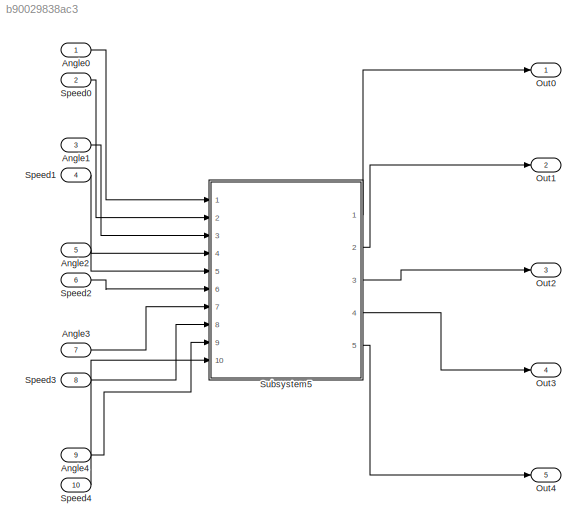
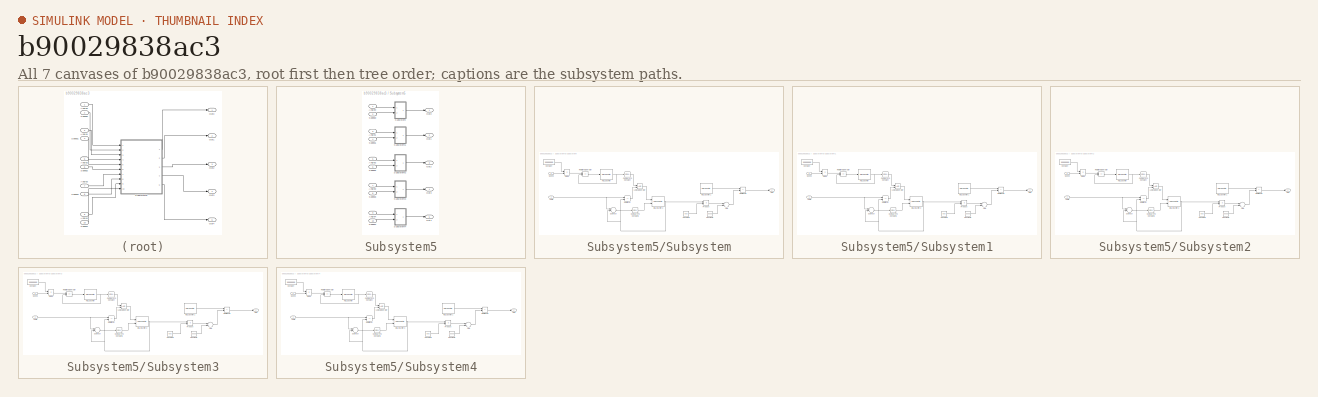
[diagram: thumbnail index - all 7 canvases of the model, root first then tree order]
MODEL slx_b90029838ac3
KIND model
BLOCK [Inport] Angle0
  IconDisplay = Port number
  OutDataTypeStr = int8
  SampleTime = 1
BLOCK [Inport] Angle1
  IconDisplay = Port number
  OutDataTypeStr = int8
  Port = 3
  SampleTime = 1
BLOCK [Inport] Angle2
  IconDisplay = Port number
  OutDataTypeStr = int8
  Port = 5
  SampleTime = 1
BLOCK [Inport] Angle3
  IconDisplay = Port number
  OutDataTypeStr = int8
  Port = 7
  SampleTime = 1
BLOCK [Inport] Angle4
  IconDisplay = Port number
  OutDataTypeStr = int8
  Port = 9
  SampleTime = 1
BLOCK [Outport] Out0
  IconDisplay = Port number
BLOCK [Outport] Out1
  IconDisplay = Port number
  Port = 2
BLOCK [Outport] Out2
  IconDisplay = Port number
  Port = 3
BLOCK [Outport] Out3
  IconDisplay = Port number
  Port = 4
BLOCK [Outport] Out4
  IconDisplay = Port number
  Port = 5
BLOCK [Inport] Speed0
  IconDisplay = Port number
  OutDataTypeStr = int32
  Port = 2
  SampleTime = 1
BLOCK [Inport] Speed1
  IconDisplay = Port number
  OutDataTypeStr = int32
  Port = 4
  SampleTime = 1
BLOCK [Inport] Speed2
  IconDisplay = Port number
  OutDataTypeStr = int32
  Port = 6
  SampleTime = 1
BLOCK [Inport] Speed3
  IconDisplay = Port number
  OutDataTypeStr = int32
  Port = 8
  SampleTime = 1
BLOCK [Inport] Speed4
  IconDisplay = Port number
  OutDataTypeStr = int32
  Port = 10
  SampleTime = 1
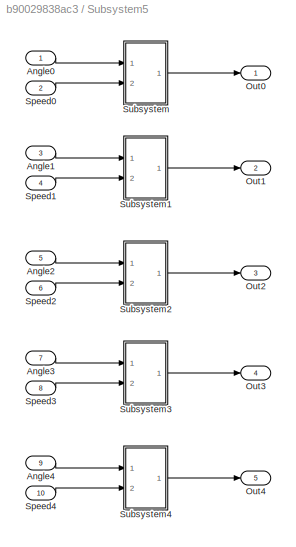
BLOCK [SubSystem] Subsystem5
  Ports = [10, 5]
  RequestExecContextInheritance = off
  TreatAsAtomicUnit = on
BLOCK [Inport] Subsystem5/Angle0
  IconDisplay = Port number
BLOCK [Inport] Subsystem5/Angle1
  IconDisplay = Port number
  Port = 3
BLOCK [Inport] Subsystem5/Angle2
  IconDisplay = Port number
  Port = 5
BLOCK [Inport] Subsystem5/Angle3
  IconDisplay = Port number
  Port = 7
BLOCK [Inport] Subsystem5/Angle4
  IconDisplay = Port number
  Port = 9
BLOCK [Outport] Subsystem5/Out0
  IconDisplay = Port number
BLOCK [Outport] Subsystem5/Out1
  IconDisplay = Port number
  Port = 2
BLOCK [Outport] Subsystem5/Out2
  IconDisplay = Port number
  Port = 3
BLOCK [Outport] Subsystem5/Out3
  IconDisplay = Port number
  Port = 4
BLOCK [Outport] Subsystem5/Out4
  IconDisplay = Port number
  Port = 5
BLOCK [Inport] Subsystem5/Speed0
  IconDisplay = Port number
  Port = 2
BLOCK [Inport] Subsystem5/Speed1
  IconDisplay = Port number
  Port = 4
BLOCK [Inport] Subsystem5/Speed2
  IconDisplay = Port number
  Port = 6
BLOCK [Inport] Subsystem5/Speed3
  IconDisplay = Port number
  Port = 8
BLOCK [Inport] Subsystem5/Speed4
  IconDisplay = Port number
  Port = 10
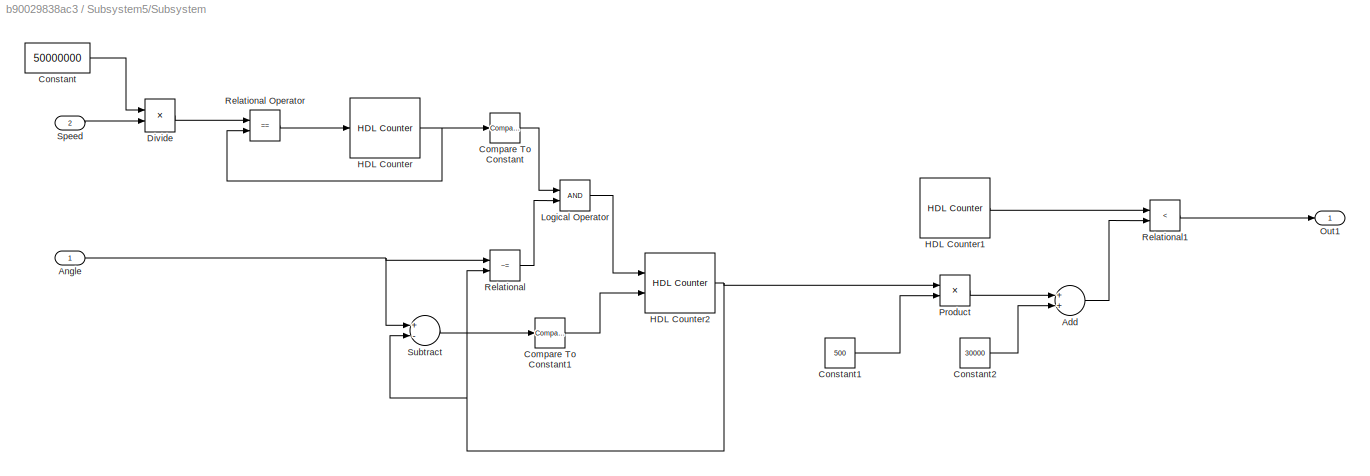
BLOCK [SubSystem] Subsystem5/Subsystem
  Ports = [2, 1]
  RequestExecContextInheritance = off
BLOCK [Sum] Subsystem5/Subsystem/Add
  InputSameDT = off
  OutDataTypeStr = Inherit: Inherit via internal rule
  Ports = [2, 1]
  SaturateOnIntegerOverflow = off
BLOCK [Inport] Subsystem5/Subsystem/Angle
  IconDisplay = Port number
BLOCK [Reference] Subsystem5/Subsystem/Compare To Constant  REF=simulink/Logic and Bit
Operations/Compare
To Constant
  OutDataTypeStr = boolean
  Ports = [1, 1]
  SourceBlock = simulink/Logic and Bit\nOperations/Compare\nTo Constant
  SourceType = Compare To Constant
  ZeroCross = on
  const = 0
  relop = ==
BLOCK [Reference] Subsystem5/Subsystem/Compare To Constant1  REF=simulink/Logic and Bit
Operations/Compare
To Constant
  OutDataTypeStr = boolean
  Ports = [1, 1]
  SourceBlock = simulink/Logic and Bit\nOperations/Compare\nTo Constant
  SourceType = Compare To Constant
  ZeroCross = on
  const = 0
  relop = >=
BLOCK [Constant] Subsystem5/Subsystem/Constant
  OutDataTypeStr = int32
  Value = 50000000
BLOCK [Constant] Subsystem5/Subsystem/Constant1
  OutDataTypeStr = int32
  Value = 500
BLOCK [Constant] Subsystem5/Subsystem/Constant2
  OutDataTypeStr = int32
  Value = 30000
BLOCK [Product] Subsystem5/Subsystem/Divide
  InputSameDT = off
  Inputs = */
  OutDataTypeStr = int32
  Ports = [2, 1]
BLOCK [Reference] Subsystem5/Subsystem/HDL Counter  REF=hdlsllib/HDL Operations/HDL Counter
  CountDataType = Unsigned
  CountDirPort = off
  CountEnbPort = off
  CountFracLen = 0
  CountFrom = 0
  CountFromType = Initial value
  CountInit = 0
  CountLoadPort = off
  CountMax = 100
  CountResetPort = on
  CountSampTime = 1
  CountStep = 1
  CountType = Free running
  CountWordLen = 32
  Ports = [1, 1]
  SourceBlock = hdlsllib/HDL Operations/HDL Counter
  SourceType = HDL Counter
BLOCK [Reference] Subsystem5/Subsystem/HDL Counter1  REF=hdlsllib/HDL Operations/HDL Counter
  CountDataType = Unsigned
  CountDirPort = off
  CountEnbPort = off
  CountFracLen = 0
  CountFrom = 0
  CountFromType = Initial value
  CountInit = 0
  CountLoadPort = off
  CountMax = 1000000
  CountResetPort = off
  CountSampTime = 1
  CountStep = 1
  CountType = Count limited
  CountWordLen = 32
  Ports = [0, 1]
  SourceBlock = hdlsllib/HDL Operations/HDL Counter
  SourceType = HDL Counter
BLOCK [Reference] Subsystem5/Subsystem/HDL Counter2  REF=hdlsllib/HDL Operations/HDL Counter
  CountDataType = Unsigned
  CountDirPort = on
  CountEnbPort = on
  CountFracLen = 0
  CountFrom = 0
  CountFromType = Specify
  CountInit = 90
  CountLoadPort = off
  CountMax = 180
  CountResetPort = off
  CountSampTime = 1
  CountStep = 1
  CountType = Count limited
  CountWordLen = 32
  Ports = [2, 1]
  SourceBlock = hdlsllib/HDL Operations/HDL Counter
  SourceType = HDL Counter
BLOCK [Logic] Subsystem5/Subsystem/Logical Operator
  AllPortsSameDT = off
  OutDataTypeStr = boolean
  Ports = [2, 1]
BLOCK [Outport] Subsystem5/Subsystem/Out1
  IconDisplay = Port number
BLOCK [Product] Subsystem5/Subsystem/Product
  InputSameDT = off
  OutDataTypeStr = Inherit: Inherit via internal rule
  Ports = [2, 1]
  RndMeth = Floor
  SaturateOnIntegerOverflow = off
BLOCK [RelationalOperator] Subsystem5/Subsystem/Relational
  InputSameDT = off
  Operator = ~=
  OutDataTypeStr = boolean
  Ports = [2, 1]
BLOCK [RelationalOperator] Subsystem5/Subsystem/Relational Operator
  InputSameDT = off
  Operator = ==
  OutDataTypeStr = boolean
  Ports = [2, 1]
BLOCK [RelationalOperator] Subsystem5/Subsystem/Relational1
  InputSameDT = off
  Operator = <
  OutDataTypeStr = boolean
  Ports = [2, 1]
BLOCK [Inport] Subsystem5/Subsystem/Speed
  IconDisplay = Port number
  Port = 2
BLOCK [Sum] Subsystem5/Subsystem/Subtract
  InputSameDT = off
  Inputs = +-
  OutDataTypeStr = Inherit: Inherit via internal rule
  Ports = [2, 1]
  SaturateOnIntegerOverflow = off
BLOCK [SubSystem] Subsystem5/Subsystem1
  Ports = [2, 1]
  RequestExecContextInheritance = off
BLOCK [Sum] Subsystem5/Subsystem1/Add
  InputSameDT = off
  OutDataTypeStr = Inherit: Inherit via internal rule
  Ports = [2, 1]
  SaturateOnIntegerOverflow = off
BLOCK [Inport] Subsystem5/Subsystem1/Angle
  IconDisplay = Port number
BLOCK [Reference] Subsystem5/Subsystem1/Compare To Constant  REF=simulink/Logic and Bit
Operations/Compare
To Constant
  OutDataTypeStr = boolean
  Ports = [1, 1]
  SourceBlock = simulink/Logic and Bit\nOperations/Compare\nTo Constant
  SourceType = Compare To Constant
  ZeroCross = on
  const = 0
  relop = ==
BLOCK [Reference] Subsystem5/Subsystem1/Compare To Constant1  REF=simulink/Logic and Bit
Operations/Compare
To Constant
  OutDataTypeStr = boolean
  Ports = [1, 1]
  SourceBlock = simulink/Logic and Bit\nOperations/Compare\nTo Constant
  SourceType = Compare To Constant
  ZeroCross = on
  const = 0
  relop = >=
BLOCK [Constant] Subsystem5/Subsystem1/Constant
  OutDataTypeStr = int32
  Value = 50000000
BLOCK [Constant] Subsystem5/Subsystem1/Constant1
  OutDataTypeStr = int32
  Value = 500
BLOCK [Constant] Subsystem5/Subsystem1/Constant2
  OutDataTypeStr = int32
  Value = 30000
BLOCK [Product] Subsystem5/Subsystem1/Divide
  InputSameDT = off
  Inputs = */
  OutDataTypeStr = int32
  Ports = [2, 1]
BLOCK [Reference] Subsystem5/Subsystem1/HDL Counter  REF=hdlsllib/HDL Operations/HDL Counter
  CountDataType = Unsigned
  CountDirPort = off
  CountEnbPort = off
  CountFracLen = 0
  CountFrom = 0
  CountFromType = Initial value
  CountInit = 0
  CountLoadPort = off
  CountMax = 100
  CountResetPort = on
  CountSampTime = 1
  CountStep = 1
  CountType = Free running
  CountWordLen = 32
  Ports = [1, 1]
  SourceBlock = hdlsllib/HDL Operations/HDL Counter
  SourceType = HDL Counter
BLOCK [Reference] Subsystem5/Subsystem1/HDL Counter1  REF=hdlsllib/HDL Operations/HDL Counter
  CountDataType = Unsigned
  CountDirPort = off
  CountEnbPort = off
  CountFracLen = 0
  CountFrom = 0
  CountFromType = Initial value
  CountInit = 0
  CountLoadPort = off
  CountMax = 1000000
  CountResetPort = off
  CountSampTime = 1
  CountStep = 1
  CountType = Count limited
  CountWordLen = 32
  Ports = [0, 1]
  SourceBlock = hdlsllib/HDL Operations/HDL Counter
  SourceType = HDL Counter
BLOCK [Reference] Subsystem5/Subsystem1/HDL Counter2  REF=hdlsllib/HDL Operations/HDL Counter
  CountDataType = Unsigned
  CountDirPort = on
  CountEnbPort = on
  CountFracLen = 0
  CountFrom = 0
  CountFromType = Specify
  CountInit = 90
  CountLoadPort = off
  CountMax = 180
  CountResetPort = off
  CountSampTime = 1
  CountStep = 1
  CountType = Count limited
  CountWordLen = 32
  Ports = [2, 1]
  SourceBlock = hdlsllib/HDL Operations/HDL Counter
  SourceType = HDL Counter
BLOCK [Logic] Subsystem5/Subsystem1/Logical Operator
  AllPortsSameDT = off
  OutDataTypeStr = boolean
  Ports = [2, 1]
BLOCK [Outport] Subsystem5/Subsystem1/Out1
  IconDisplay = Port number
BLOCK [Product] Subsystem5/Subsystem1/Product
  InputSameDT = off
  OutDataTypeStr = Inherit: Inherit via internal rule
  Ports = [2, 1]
  RndMeth = Floor
  SaturateOnIntegerOverflow = off
BLOCK [RelationalOperator] Subsystem5/Subsystem1/Relational
  InputSameDT = off
  Operator = ~=
  OutDataTypeStr = boolean
  Ports = [2, 1]
BLOCK [RelationalOperator] Subsystem5/Subsystem1/Relational Operator
  InputSameDT = off
  Operator = ==
  OutDataTypeStr = boolean
  Ports = [2, 1]
BLOCK [RelationalOperator] Subsystem5/Subsystem1/Relational1
  InputSameDT = off
  Operator = <
  OutDataTypeStr = boolean
  Ports = [2, 1]
BLOCK [Inport] Subsystem5/Subsystem1/Speed
  IconDisplay = Port number
  Port = 2
BLOCK [Sum] Subsystem5/Subsystem1/Subtract
  InputSameDT = off
  Inputs = +-
  OutDataTypeStr = Inherit: Inherit via internal rule
  Ports = [2, 1]
  SaturateOnIntegerOverflow = off
BLOCK [SubSystem] Subsystem5/Subsystem2
  Ports = [2, 1]
  RequestExecContextInheritance = off
BLOCK [Sum] Subsystem5/Subsystem2/Add
  InputSameDT = off
  OutDataTypeStr = Inherit: Inherit via internal rule
  Ports = [2, 1]
  SaturateOnIntegerOverflow = off
BLOCK [Inport] Subsystem5/Subsystem2/Angle
  IconDisplay = Port number
BLOCK [Reference] Subsystem5/Subsystem2/Compare To Constant  REF=simulink/Logic and Bit
Operations/Compare
To Constant
  OutDataTypeStr = boolean
  Ports = [1, 1]
  SourceBlock = simulink/Logic and Bit\nOperations/Compare\nTo Constant
  SourceType = Compare To Constant
  ZeroCross = on
  const = 0
  relop = ==
BLOCK [Reference] Subsystem5/Subsystem2/Compare To Constant1  REF=simulink/Logic and Bit
Operations/Compare
To Constant
  OutDataTypeStr = boolean
  Ports = [1, 1]
  SourceBlock = simulink/Logic and Bit\nOperations/Compare\nTo Constant
  SourceType = Compare To Constant
  ZeroCross = on
  const = 0
  relop = >=
BLOCK [Constant] Subsystem5/Subsystem2/Constant
  OutDataTypeStr = int32
  Value = 50000000
BLOCK [Constant] Subsystem5/Subsystem2/Constant1
  OutDataTypeStr = int32
  Value = 500
BLOCK [Constant] Subsystem5/Subsystem2/Constant2
  OutDataTypeStr = int32
  Value = 30000
BLOCK [Product] Subsystem5/Subsystem2/Divide
  InputSameDT = off
  Inputs = */
  OutDataTypeStr = int32
  Ports = [2, 1]
BLOCK [Reference] Subsystem5/Subsystem2/HDL Counter  REF=hdlsllib/HDL Operations/HDL Counter
  CountDataType = Unsigned
  CountDirPort = off
  CountEnbPort = off
  CountFracLen = 0
  CountFrom = 0
  CountFromType = Initial value
  CountInit = 0
  CountLoadPort = off
  CountMax = 100
  CountResetPort = on
  CountSampTime = 1
  CountStep = 1
  CountType = Free running
  CountWordLen = 32
  Ports = [1, 1]
  SourceBlock = hdlsllib/HDL Operations/HDL Counter
  SourceType = HDL Counter
BLOCK [Reference] Subsystem5/Subsystem2/HDL Counter1  REF=hdlsllib/HDL Operations/HDL Counter
  CountDataType = Unsigned
  CountDirPort = off
  CountEnbPort = off
  CountFracLen = 0
  CountFrom = 0
  CountFromType = Initial value
  CountInit = 0
  CountLoadPort = off
  CountMax = 1000000
  CountResetPort = off
  CountSampTime = 1
  CountStep = 1
  CountType = Count limited
  CountWordLen = 32
  Ports = [0, 1]
  SourceBlock = hdlsllib/HDL Operations/HDL Counter
  SourceType = HDL Counter
BLOCK [Reference] Subsystem5/Subsystem2/HDL Counter2  REF=hdlsllib/HDL Operations/HDL Counter
  CountDataType = Unsigned
  CountDirPort = on
  CountEnbPort = on
  CountFracLen = 0
  CountFrom = 0
  CountFromType = Specify
  CountInit = 90
  CountLoadPort = off
  CountMax = 180
  CountResetPort = off
  CountSampTime = 1
  CountStep = 1
  CountType = Count limited
  CountWordLen = 32
  Ports = [2, 1]
  SourceBlock = hdlsllib/HDL Operations/HDL Counter
  SourceType = HDL Counter
BLOCK [Logic] Subsystem5/Subsystem2/Logical Operator
  AllPortsSameDT = off
  OutDataTypeStr = boolean
  Ports = [2, 1]
BLOCK [Outport] Subsystem5/Subsystem2/Out1
  IconDisplay = Port number
BLOCK [Product] Subsystem5/Subsystem2/Product
  InputSameDT = off
  OutDataTypeStr = Inherit: Inherit via internal rule
  Ports = [2, 1]
  RndMeth = Floor
  SaturateOnIntegerOverflow = off
BLOCK [RelationalOperator] Subsystem5/Subsystem2/Relational
  InputSameDT = off
  Operator = ~=
  OutDataTypeStr = boolean
  Ports = [2, 1]
BLOCK [RelationalOperator] Subsystem5/Subsystem2/Relational Operator
  InputSameDT = off
  Operator = ==
  OutDataTypeStr = boolean
  Ports = [2, 1]
BLOCK [RelationalOperator] Subsystem5/Subsystem2/Relational1
  InputSameDT = off
  Operator = <
  OutDataTypeStr = boolean
  Ports = [2, 1]
BLOCK [Inport] Subsystem5/Subsystem2/Speed
  IconDisplay = Port number
  Port = 2
BLOCK [Sum] Subsystem5/Subsystem2/Subtract
  InputSameDT = off
  Inputs = +-
  OutDataTypeStr = Inherit: Inherit via internal rule
  Ports = [2, 1]
  SaturateOnIntegerOverflow = off
BLOCK [SubSystem] Subsystem5/Subsystem3
  Ports = [2, 1]
  RequestExecContextInheritance = off
BLOCK [Sum] Subsystem5/Subsystem3/Add
  InputSameDT = off
  OutDataTypeStr = Inherit: Inherit via internal rule
  Ports = [2, 1]
  SaturateOnIntegerOverflow = off
BLOCK [Inport] Subsystem5/Subsystem3/Angle
  IconDisplay = Port number
BLOCK [Reference] Subsystem5/Subsystem3/Compare To Constant  REF=simulink/Logic and Bit
Operations/Compare
To Constant
  OutDataTypeStr = boolean
  Ports = [1, 1]
  SourceBlock = simulink/Logic and Bit\nOperations/Compare\nTo Constant
  SourceType = Compare To Constant
  ZeroCross = on
  const = 0
  relop = ==
BLOCK [Reference] Subsystem5/Subsystem3/Compare To Constant1  REF=simulink/Logic and Bit
Operations/Compare
To Constant
  OutDataTypeStr = boolean
  Ports = [1, 1]
  SourceBlock = simulink/Logic and Bit\nOperations/Compare\nTo Constant
  SourceType = Compare To Constant
  ZeroCross = on
  const = 0
  relop = >=
BLOCK [Constant] Subsystem5/Subsystem3/Constant
  OutDataTypeStr = int32
  Value = 50000000
BLOCK [Constant] Subsystem5/Subsystem3/Constant1
  OutDataTypeStr = int32
  Value = 500
BLOCK [Constant] Subsystem5/Subsystem3/Constant2
  OutDataTypeStr = int32
  Value = 30000
BLOCK [Product] Subsystem5/Subsystem3/Divide
  InputSameDT = off
  Inputs = */
  OutDataTypeStr = int32
  Ports = [2, 1]
BLOCK [Reference] Subsystem5/Subsystem3/HDL Counter  REF=hdlsllib/HDL Operations/HDL Counter
  CountDataType = Unsigned
  CountDirPort = off
  CountEnbPort = off
  CountFracLen = 0
  CountFrom = 0
  CountFromType = Initial value
  CountInit = 0
  CountLoadPort = off
  CountMax = 100
  CountResetPort = on
  CountSampTime = 1
  CountStep = 1
  CountType = Free running
  CountWordLen = 32
  Ports = [1, 1]
  SourceBlock = hdlsllib/HDL Operations/HDL Counter
  SourceType = HDL Counter
BLOCK [Reference] Subsystem5/Subsystem3/HDL Counter1  REF=hdlsllib/HDL Operations/HDL Counter
  CountDataType = Unsigned
  CountDirPort = off
  CountEnbPort = off
  CountFracLen = 0
  CountFrom = 0
  CountFromType = Initial value
  CountInit = 0
  CountLoadPort = off
  CountMax = 1000000
  CountResetPort = off
  CountSampTime = 1
  CountStep = 1
  CountType = Count limited
  CountWordLen = 32
  Ports = [0, 1]
  SourceBlock = hdlsllib/HDL Operations/HDL Counter
  SourceType = HDL Counter
BLOCK [Reference] Subsystem5/Subsystem3/HDL Counter2  REF=hdlsllib/HDL Operations/HDL Counter
  CountDataType = Unsigned
  CountDirPort = on
  CountEnbPort = on
  CountFracLen = 0
  CountFrom = 0
  CountFromType = Specify
  CountInit = 90
  CountLoadPort = off
  CountMax = 180
  CountResetPort = off
  CountSampTime = 1
  CountStep = 1
  CountType = Count limited
  CountWordLen = 32
  Ports = [2, 1]
  SourceBlock = hdlsllib/HDL Operations/HDL Counter
  SourceType = HDL Counter
BLOCK [Logic] Subsystem5/Subsystem3/Logical Operator
  AllPortsSameDT = off
  OutDataTypeStr = boolean
  Ports = [2, 1]
BLOCK [Outport] Subsystem5/Subsystem3/Out1
  IconDisplay = Port number
BLOCK [Product] Subsystem5/Subsystem3/Product
  InputSameDT = off
  OutDataTypeStr = Inherit: Inherit via internal rule
  Ports = [2, 1]
  RndMeth = Floor
  SaturateOnIntegerOverflow = off
BLOCK [RelationalOperator] Subsystem5/Subsystem3/Relational
  InputSameDT = off
  Operator = ~=
  OutDataTypeStr = boolean
  Ports = [2, 1]
BLOCK [RelationalOperator] Subsystem5/Subsystem3/Relational Operator
  InputSameDT = off
  Operator = ==
  OutDataTypeStr = boolean
  Ports = [2, 1]
BLOCK [RelationalOperator] Subsystem5/Subsystem3/Relational1
  InputSameDT = off
  Operator = <
  OutDataTypeStr = boolean
  Ports = [2, 1]
BLOCK [Inport] Subsystem5/Subsystem3/Speed
  IconDisplay = Port number
  Port = 2
BLOCK [Sum] Subsystem5/Subsystem3/Subtract
  InputSameDT = off
  Inputs = +-
  OutDataTypeStr = Inherit: Inherit via internal rule
  Ports = [2, 1]
  SaturateOnIntegerOverflow = off
BLOCK [SubSystem] Subsystem5/Subsystem4
  Ports = [2, 1]
  RequestExecContextInheritance = off
BLOCK [Sum] Subsystem5/Subsystem4/Add
  InputSameDT = off
  OutDataTypeStr = Inherit: Inherit via internal rule
  Ports = [2, 1]
  SaturateOnIntegerOverflow = off
BLOCK [Inport] Subsystem5/Subsystem4/Angle
  IconDisplay = Port number
BLOCK [Reference] Subsystem5/Subsystem4/Compare To Constant  REF=simulink/Logic and Bit
Operations/Compare
To Constant
  OutDataTypeStr = boolean
  Ports = [1, 1]
  SourceBlock = simulink/Logic and Bit\nOperations/Compare\nTo Constant
  SourceType = Compare To Constant
  ZeroCross = on
  const = 0
  relop = ==
BLOCK [Reference] Subsystem5/Subsystem4/Compare To Constant1  REF=simulink/Logic and Bit
Operations/Compare
To Constant
  OutDataTypeStr = boolean
  Ports = [1, 1]
  SourceBlock = simulink/Logic and Bit\nOperations/Compare\nTo Constant
  SourceType = Compare To Constant
  ZeroCross = on
  const = 0
  relop = >=
BLOCK [Constant] Subsystem5/Subsystem4/Constant
  OutDataTypeStr = int32
  Value = 50000000
BLOCK [Constant] Subsystem5/Subsystem4/Constant1
  OutDataTypeStr = int32
  Value = 500
BLOCK [Constant] Subsystem5/Subsystem4/Constant2
  OutDataTypeStr = int32
  Value = 30000
BLOCK [Product] Subsystem5/Subsystem4/Divide
  InputSameDT = off
  Inputs = */
  OutDataTypeStr = int32
  Ports = [2, 1]
BLOCK [Reference] Subsystem5/Subsystem4/HDL Counter  REF=hdlsllib/HDL Operations/HDL Counter
  CountDataType = Unsigned
  CountDirPort = off
  CountEnbPort = off
  CountFracLen = 0
  CountFrom = 0
  CountFromType = Initial value
  CountInit = 0
  CountLoadPort = off
  CountMax = 100
  CountResetPort = on
  CountSampTime = 1
  CountStep = 1
  CountType = Free running
  CountWordLen = 32
  Ports = [1, 1]
  SourceBlock = hdlsllib/HDL Operations/HDL Counter
  SourceType = HDL Counter
BLOCK [Reference] Subsystem5/Subsystem4/HDL Counter1  REF=hdlsllib/HDL Operations/HDL Counter
  CountDataType = Unsigned
  CountDirPort = off
  CountEnbPort = off
  CountFracLen = 0
  CountFrom = 0
  CountFromType = Initial value
  CountInit = 0
  CountLoadPort = off
  CountMax = 1000000
  CountResetPort = off
  CountSampTime = 1
  CountStep = 1
  CountType = Count limited
  CountWordLen = 32
  Ports = [0, 1]
  SourceBlock = hdlsllib/HDL Operations/HDL Counter
  SourceType = HDL Counter
BLOCK [Reference] Subsystem5/Subsystem4/HDL Counter2  REF=hdlsllib/HDL Operations/HDL Counter
  CountDataType = Unsigned
  CountDirPort = on
  CountEnbPort = on
  CountFracLen = 0
  CountFrom = 0
  CountFromType = Specify
  CountInit = 90
  CountLoadPort = off
  CountMax = 180
  CountResetPort = off
  CountSampTime = 1
  CountStep = 1
  CountType = Count limited
  CountWordLen = 32
  Ports = [2, 1]
  SourceBlock = hdlsllib/HDL Operations/HDL Counter
  SourceType = HDL Counter
BLOCK [Logic] Subsystem5/Subsystem4/Logical Operator
  AllPortsSameDT = off
  OutDataTypeStr = boolean
  Ports = [2, 1]
BLOCK [Outport] Subsystem5/Subsystem4/Out1
  IconDisplay = Port number
BLOCK [Product] Subsystem5/Subsystem4/Product
  InputSameDT = off
  OutDataTypeStr = Inherit: Inherit via internal rule
  Ports = [2, 1]
  RndMeth = Floor
  SaturateOnIntegerOverflow = off
BLOCK [RelationalOperator] Subsystem5/Subsystem4/Relational
  InputSameDT = off
  Operator = ~=
  OutDataTypeStr = boolean
  Ports = [2, 1]
BLOCK [RelationalOperator] Subsystem5/Subsystem4/Relational Operator
  InputSameDT = off
  Operator = ==
  OutDataTypeStr = boolean
  Ports = [2, 1]
BLOCK [RelationalOperator] Subsystem5/Subsystem4/Relational1
  InputSameDT = off
  Operator = <
  OutDataTypeStr = boolean
  Ports = [2, 1]
BLOCK [Inport] Subsystem5/Subsystem4/Speed
  IconDisplay = Port number
  Port = 2
BLOCK [Sum] Subsystem5/Subsystem4/Subtract
  InputSameDT = off
  Inputs = +-
  OutDataTypeStr = Inherit: Inherit via internal rule
  Ports = [2, 1]
  SaturateOnIntegerOverflow = off
LINE Angle0:1 -> Subsystem5:1
LINE Angle1:1 -> Subsystem5:3
LINE Angle2:1 -> Subsystem5:5
LINE Angle3:1 -> Subsystem5:7
LINE Angle4:1 -> Subsystem5:9
LINE Speed0:1 -> Subsystem5:2
LINE Speed1:1 -> Subsystem5:4
LINE Speed2:1 -> Subsystem5:6
LINE Speed3:1 -> Subsystem5:8
LINE Speed4:1 -> Subsystem5:10
LINE Subsystem5/Angle0:1 -> Subsystem5/Subsystem:1
LINE Subsystem5/Angle1:1 -> Subsystem5/Subsystem1:1
LINE Subsystem5/Angle2:1 -> Subsystem5/Subsystem2:1
LINE Subsystem5/Angle3:1 -> Subsystem5/Subsystem3:1
LINE Subsystem5/Angle4:1 -> Subsystem5/Subsystem4:1
LINE Subsystem5/Speed0:1 -> Subsystem5/Subsystem:2
LINE Subsystem5/Speed1:1 -> Subsystem5/Subsystem1:2
LINE Subsystem5/Speed2:1 -> Subsystem5/Subsystem2:2
LINE Subsystem5/Speed3:1 -> Subsystem5/Subsystem3:2
LINE Subsystem5/Speed4:1 -> Subsystem5/Subsystem4:2
LINE Subsystem5/Subsystem/Add:1 -> Subsystem5/Subsystem/Relational1:2
NET Subsystem5/Subsystem/Angle:1 -> Subsystem5/Subsystem/Relational:1, Subsystem5/Subsystem/Subtract:1
LINE Subsystem5/Subsystem/Compare To Constant1:1 -> Subsystem5/Subsystem/HDL Counter2:2
LINE Subsystem5/Subsystem/Compare To Constant:1 -> Subsystem5/Subsystem/Logical Operator:1
LINE Subsystem5/Subsystem/Constant1:1 -> Subsystem5/Subsystem/Product:2
LINE Subsystem5/Subsystem/Constant2:1 -> Subsystem5/Subsystem/Add:2
LINE Subsystem5/Subsystem/Constant:1 -> Subsystem5/Subsystem/Divide:1
LINE Subsystem5/Subsystem/Divide:1 -> Subsystem5/Subsystem/Relational Operator:1
LINE Subsystem5/Subsystem/HDL Counter1:1 -> Subsystem5/Subsystem/Relational1:1
NET Subsystem5/Subsystem/HDL Counter2:1 -> Subsystem5/Subsystem/Product:1, Subsystem5/Subsystem/Relational:2, Subsystem5/Subsystem/Subtract:2
NET Subsystem5/Subsystem/HDL Counter:1 -> Subsystem5/Subsystem/Compare To Constant:1, Subsystem5/Subsystem/Relational Operator:2
LINE Subsystem5/Subsystem/Logical Operator:1 -> Subsystem5/Subsystem/HDL Counter2:1
LINE Subsystem5/Subsystem/Product:1 -> Subsystem5/Subsystem/Add:1
LINE Subsystem5/Subsystem/Relational Operator:1 -> Subsystem5/Subsystem/HDL Counter:1
LINE Subsystem5/Subsystem/Relational1:1 -> Subsystem5/Subsystem/Out1:1
LINE Subsystem5/Subsystem/Relational:1 -> Subsystem5/Subsystem/Logical Operator:2
LINE Subsystem5/Subsystem/Speed:1 -> Subsystem5/Subsystem/Divide:2
LINE Subsystem5/Subsystem/Subtract:1 -> Subsystem5/Subsystem/Compare To Constant1:1
LINE Subsystem5/Subsystem1/Add:1 -> Subsystem5/Subsystem1/Relational1:2
NET Subsystem5/Subsystem1/Angle:1 -> Subsystem5/Subsystem1/Relational:1, Subsystem5/Subsystem1/Subtract:1
LINE Subsystem5/Subsystem1/Compare To Constant1:1 -> Subsystem5/Subsystem1/HDL Counter2:2
LINE Subsystem5/Subsystem1/Compare To Constant:1 -> Subsystem5/Subsystem1/Logical Operator:1
LINE Subsystem5/Subsystem1/Constant1:1 -> Subsystem5/Subsystem1/Product:2
LINE Subsystem5/Subsystem1/Constant2:1 -> Subsystem5/Subsystem1/Add:2
LINE Subsystem5/Subsystem1/Constant:1 -> Subsystem5/Subsystem1/Divide:1
LINE Subsystem5/Subsystem1/Divide:1 -> Subsystem5/Subsystem1/Relational Operator:1
LINE Subsystem5/Subsystem1/HDL Counter1:1 -> Subsystem5/Subsystem1/Relational1:1
NET Subsystem5/Subsystem1/HDL Counter2:1 -> Subsystem5/Subsystem1/Product:1, Subsystem5/Subsystem1/Relational:2, Subsystem5/Subsystem1/Subtract:2
NET Subsystem5/Subsystem1/HDL Counter:1 -> Subsystem5/Subsystem1/Compare To Constant:1, Subsystem5/Subsystem1/Relational Operator:2
LINE Subsystem5/Subsystem1/Logical Operator:1 -> Subsystem5/Subsystem1/HDL Counter2:1
LINE Subsystem5/Subsystem1/Product:1 -> Subsystem5/Subsystem1/Add:1
LINE Subsystem5/Subsystem1/Relational Operator:1 -> Subsystem5/Subsystem1/HDL Counter:1
LINE Subsystem5/Subsystem1/Relational1:1 -> Subsystem5/Subsystem1/Out1:1
LINE Subsystem5/Subsystem1/Relational:1 -> Subsystem5/Subsystem1/Logical Operator:2
LINE Subsystem5/Subsystem1/Speed:1 -> Subsystem5/Subsystem1/Divide:2
LINE Subsystem5/Subsystem1/Subtract:1 -> Subsystem5/Subsystem1/Compare To Constant1:1
LINE Subsystem5/Subsystem1:1 -> Subsystem5/Out1:1
LINE Subsystem5/Subsystem2/Add:1 -> Subsystem5/Subsystem2/Relational1:2
NET Subsystem5/Subsystem2/Angle:1 -> Subsystem5/Subsystem2/Relational:1, Subsystem5/Subsystem2/Subtract:1
LINE Subsystem5/Subsystem2/Compare To Constant1:1 -> Subsystem5/Subsystem2/HDL Counter2:2
LINE Subsystem5/Subsystem2/Compare To Constant:1 -> Subsystem5/Subsystem2/Logical Operator:1
LINE Subsystem5/Subsystem2/Constant1:1 -> Subsystem5/Subsystem2/Product:2
LINE Subsystem5/Subsystem2/Constant2:1 -> Subsystem5/Subsystem2/Add:2
LINE Subsystem5/Subsystem2/Constant:1 -> Subsystem5/Subsystem2/Divide:1
LINE Subsystem5/Subsystem2/Divide:1 -> Subsystem5/Subsystem2/Relational Operator:1
LINE Subsystem5/Subsystem2/HDL Counter1:1 -> Subsystem5/Subsystem2/Relational1:1
NET Subsystem5/Subsystem2/HDL Counter2:1 -> Subsystem5/Subsystem2/Product:1, Subsystem5/Subsystem2/Relational:2, Subsystem5/Subsystem2/Subtract:2
NET Subsystem5/Subsystem2/HDL Counter:1 -> Subsystem5/Subsystem2/Compare To Constant:1, Subsystem5/Subsystem2/Relational Operator:2
LINE Subsystem5/Subsystem2/Logical Operator:1 -> Subsystem5/Subsystem2/HDL Counter2:1
LINE Subsystem5/Subsystem2/Product:1 -> Subsystem5/Subsystem2/Add:1
LINE Subsystem5/Subsystem2/Relational Operator:1 -> Subsystem5/Subsystem2/HDL Counter:1
LINE Subsystem5/Subsystem2/Relational1:1 -> Subsystem5/Subsystem2/Out1:1
LINE Subsystem5/Subsystem2/Relational:1 -> Subsystem5/Subsystem2/Logical Operator:2
LINE Subsystem5/Subsystem2/Speed:1 -> Subsystem5/Subsystem2/Divide:2
LINE Subsystem5/Subsystem2/Subtract:1 -> Subsystem5/Subsystem2/Compare To Constant1:1
LINE Subsystem5/Subsystem2:1 -> Subsystem5/Out2:1
LINE Subsystem5/Subsystem3/Add:1 -> Subsystem5/Subsystem3/Relational1:2
NET Subsystem5/Subsystem3/Angle:1 -> Subsystem5/Subsystem3/Relational:1, Subsystem5/Subsystem3/Subtract:1
LINE Subsystem5/Subsystem3/Compare To Constant1:1 -> Subsystem5/Subsystem3/HDL Counter2:2
LINE Subsystem5/Subsystem3/Compare To Constant:1 -> Subsystem5/Subsystem3/Logical Operator:1
LINE Subsystem5/Subsystem3/Constant1:1 -> Subsystem5/Subsystem3/Product:2
LINE Subsystem5/Subsystem3/Constant2:1 -> Subsystem5/Subsystem3/Add:2
LINE Subsystem5/Subsystem3/Constant:1 -> Subsystem5/Subsystem3/Divide:1
LINE Subsystem5/Subsystem3/Divide:1 -> Subsystem5/Subsystem3/Relational Operator:1
LINE Subsystem5/Subsystem3/HDL Counter1:1 -> Subsystem5/Subsystem3/Relational1:1
NET Subsystem5/Subsystem3/HDL Counter2:1 -> Subsystem5/Subsystem3/Product:1, Subsystem5/Subsystem3/Relational:2, Subsystem5/Subsystem3/Subtract:2
NET Subsystem5/Subsystem3/HDL Counter:1 -> Subsystem5/Subsystem3/Compare To Constant:1, Subsystem5/Subsystem3/Relational Operator:2
LINE Subsystem5/Subsystem3/Logical Operator:1 -> Subsystem5/Subsystem3/HDL Counter2:1
LINE Subsystem5/Subsystem3/Product:1 -> Subsystem5/Subsystem3/Add:1
LINE Subsystem5/Subsystem3/Relational Operator:1 -> Subsystem5/Subsystem3/HDL Counter:1
LINE Subsystem5/Subsystem3/Relational1:1 -> Subsystem5/Subsystem3/Out1:1
LINE Subsystem5/Subsystem3/Relational:1 -> Subsystem5/Subsystem3/Logical Operator:2
LINE Subsystem5/Subsystem3/Speed:1 -> Subsystem5/Subsystem3/Divide:2
LINE Subsystem5/Subsystem3/Subtract:1 -> Subsystem5/Subsystem3/Compare To Constant1:1
LINE Subsystem5/Subsystem3:1 -> Subsystem5/Out3:1
LINE Subsystem5/Subsystem4/Add:1 -> Subsystem5/Subsystem4/Relational1:2
NET Subsystem5/Subsystem4/Angle:1 -> Subsystem5/Subsystem4/Relational:1, Subsystem5/Subsystem4/Subtract:1
LINE Subsystem5/Subsystem4/Compare To Constant1:1 -> Subsystem5/Subsystem4/HDL Counter2:2
LINE Subsystem5/Subsystem4/Compare To Constant:1 -> Subsystem5/Subsystem4/Logical Operator:1
LINE Subsystem5/Subsystem4/Constant1:1 -> Subsystem5/Subsystem4/Product:2
LINE Subsystem5/Subsystem4/Constant2:1 -> Subsystem5/Subsystem4/Add:2
LINE Subsystem5/Subsystem4/Constant:1 -> Subsystem5/Subsystem4/Divide:1
LINE Subsystem5/Subsystem4/Divide:1 -> Subsystem5/Subsystem4/Relational Operator:1
LINE Subsystem5/Subsystem4/HDL Counter1:1 -> Subsystem5/Subsystem4/Relational1:1
NET Subsystem5/Subsystem4/HDL Counter2:1 -> Subsystem5/Subsystem4/Product:1, Subsystem5/Subsystem4/Relational:2, Subsystem5/Subsystem4/Subtract:2
NET Subsystem5/Subsystem4/HDL Counter:1 -> Subsystem5/Subsystem4/Compare To Constant:1, Subsystem5/Subsystem4/Relational Operator:2
LINE Subsystem5/Subsystem4/Logical Operator:1 -> Subsystem5/Subsystem4/HDL Counter2:1
LINE Subsystem5/Subsystem4/Product:1 -> Subsystem5/Subsystem4/Add:1
LINE Subsystem5/Subsystem4/Relational Operator:1 -> Subsystem5/Subsystem4/HDL Counter:1
LINE Subsystem5/Subsystem4/Relational1:1 -> Subsystem5/Subsystem4/Out1:1
LINE Subsystem5/Subsystem4/Relational:1 -> Subsystem5/Subsystem4/Logical Operator:2
LINE Subsystem5/Subsystem4/Speed:1 -> Subsystem5/Subsystem4/Divide:2
LINE Subsystem5/Subsystem4/Subtract:1 -> Subsystem5/Subsystem4/Compare To Constant1:1
LINE Subsystem5/Subsystem4:1 -> Subsystem5/Out4:1
LINE Subsystem5/Subsystem:1 -> Subsystem5/Out0:1
LINE Subsystem5:1 -> Out0:1
LINE Subsystem5:2 -> Out1:1
LINE Subsystem5:3 -> Out2:1
LINE Subsystem5:4 -> Out3:1
LINE Subsystem5:5 -> Out4:1
note: NET lines group one-source signal fan-out (src -> all destinations, sorted); 1:1 wires keep LINE
